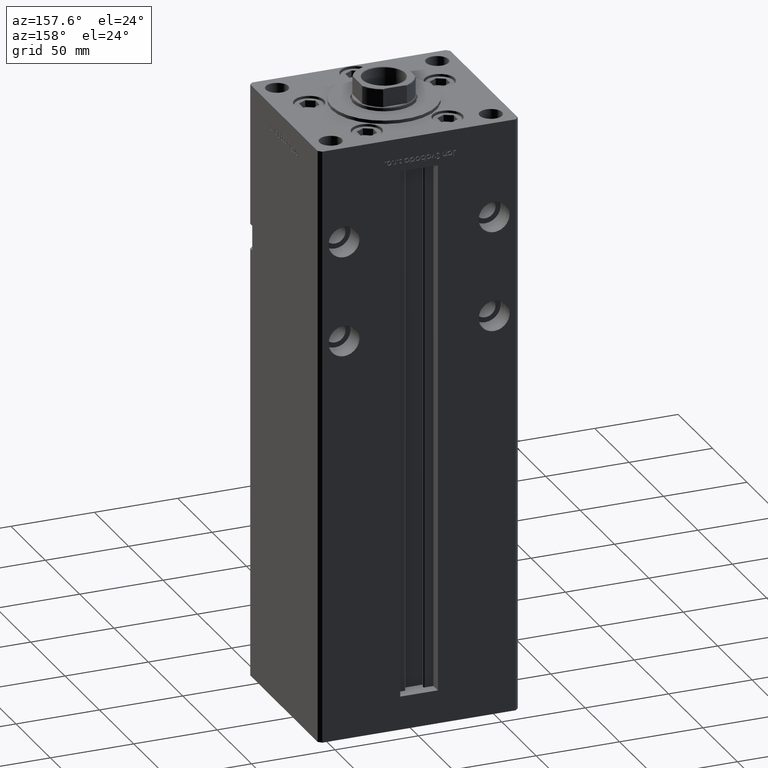
[diagram: clean part render]
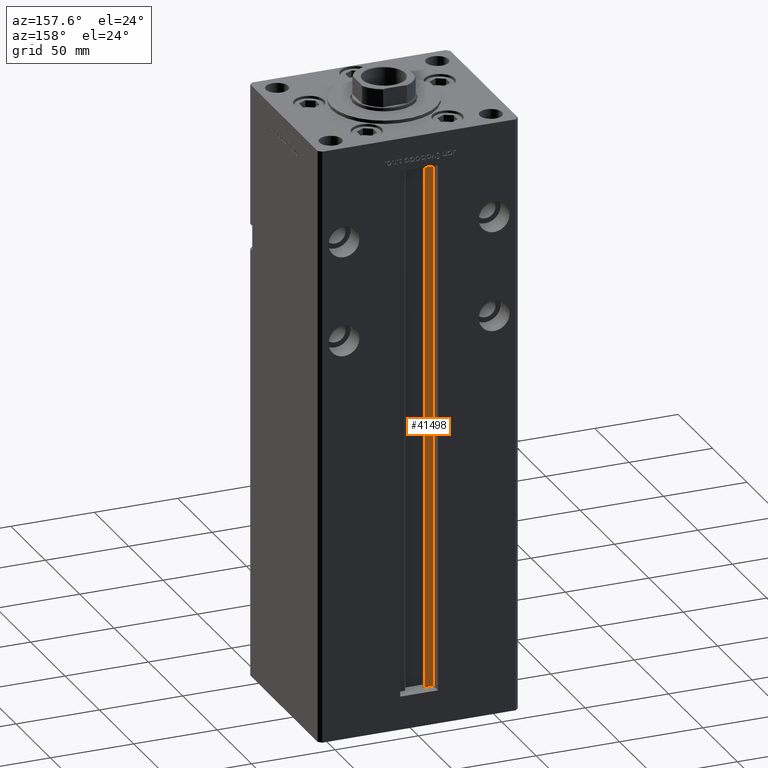
[diagram: same view with one face highlighted and labeled with its STEP entity id]
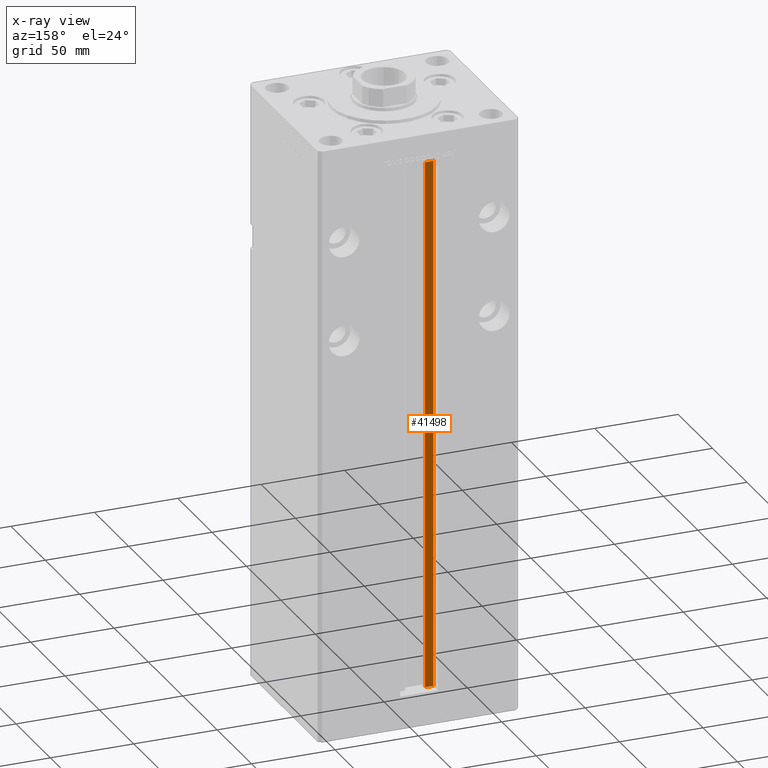
[diagram: x-ray of the same camera — body ghosted, the highlighted face saturated]
A machine part, auxiliary view. The second image highlights one B-rep face of the part: STEP entity #41498.
The next image is the same camera in x-ray: the body ghosted, the highlighted face saturated — about 0% of this face is hidden behind the body in this view.
In plain terms, the highlighted planar face has unit normal (0, -1, 0).
Its self-contained STEP definition (entity closure, byte-faithful):
#230 = LINE ( 'NONE', #48757, #33645 ) ;
#587 = DIRECTION ( 'NONE',  ( -1.000000000000000000, 0.000000000000000000, 0.000000000000000000 ) ) ;
#851 = CARTESIAN_POINT ( 'NONE',  ( -6.183333333333997928, 44.50000000000000711, 0.000000000000000000 ) ) ;
#4089 = LINE ( 'NONE', #48314, #36379 ) ;
#4267 = VERTEX_POINT ( 'NONE', #39614 ) ;
#4610 = VERTEX_POINT ( 'NONE', #39232 ) ;
#5944 = DIRECTION ( 'NONE',  ( 0.000000000000000000, 0.000000000000000000, -1.000000000000000000 ) ) ;
#6967 = ORIENTED_EDGE ( 'NONE', *, *, #17711, .F. ) ;
#7926 = VERTEX_POINT ( 'NONE', #39069 ) ;
#8057 = AXIS2_PLACEMENT_3D ( 'NONE', #51771, #34344, #5944 ) ;
#8214 = DIRECTION ( 'NONE',  ( -0.000000000000000000, -0.000000000000000000, 1.000000000000000000 ) ) ;
#10262 = EDGE_LOOP ( 'NONE', ( #34479, #49910, #35590, #6967 ) ) ;
#17711 = EDGE_CURVE ( 'NONE', #4610, #4267, #4089, .T. ) ;
#24023 = LINE ( 'NONE', #44139, #39910 ) ;
#29532 = LINE ( 'NONE', #851, #38421 ) ;
#32891 = EDGE_CURVE ( 'NONE', #52090, #7926, #29532, .T. ) ;
#33645 = VECTOR ( 'NONE', #41490, 1000.000000000000000 ) ;
#34344 = DIRECTION ( 'NONE',  ( 0.000000000000000000, -1.000000000000000000, -0.000000000000000000 ) ) ;
#34479 = ORIENTED_EDGE ( 'NONE', *, *, #48041, .F. ) ;
#35134 = FACE_OUTER_BOUND ( 'NONE', #10262, .T. ) ;
#35590 = ORIENTED_EDGE ( 'NONE', *, *, #38994, .T. ) ;
#36379 = VECTOR ( 'NONE', #587, 1000.000000000000000 ) ;
#37898 = CARTESIAN_POINT ( 'NONE',  ( -11.24999999999999822, 44.50000000000000711, 0.000000000000000000 ) ) ;
#38421 = VECTOR ( 'NONE', #49905, 1000.000000000000000 ) ;
#38994 = EDGE_CURVE ( 'NONE', #52090, #4267, #230, .T. ) ;
#39069 = CARTESIAN_POINT ( 'NONE',  ( -6.183333333333997928, 44.50000000000000711, 0.000000000000000000 ) ) ;
#39232 = CARTESIAN_POINT ( 'NONE',  ( -6.183333333333997928, 44.50000000000000711, 318.5000000000000000 ) ) ;
#39614 = CARTESIAN_POINT ( 'NONE',  ( -11.24999999999999822, 44.50000000000000711, 318.5000000000000000 ) ) ;
#39910 = VECTOR ( 'NONE', #8214, 1000.000000000000000 ) ;
#41490 = DIRECTION ( 'NONE',  ( -0.000000000000000000, -0.000000000000000000, 1.000000000000000000 ) ) ;
#41498 = ADVANCED_FACE ( 'NONE', ( #35134 ), #42913, .F. ) ;
#42913 = PLANE ( 'NONE',  #8057 ) ;
#44139 = CARTESIAN_POINT ( 'NONE',  ( -6.183333333333997928, 44.50000000000000711, 0.000000000000000000 ) ) ;
#48041 = EDGE_CURVE ( 'NONE', #7926, #4610, #24023, .T. ) ;
#48314 = CARTESIAN_POINT ( 'NONE',  ( 0.000000000000000000, 44.50000000000000711, 318.5000000000000000 ) ) ;
#48757 = CARTESIAN_POINT ( 'NONE',  ( -11.24999999999999822, 44.50000000000000711, 0.000000000000000000 ) ) ;
#49905 = DIRECTION ( 'NONE',  ( 1.000000000000000000, -0.000000000000000000, -0.000000000000000000 ) ) ;
#49910 = ORIENTED_EDGE ( 'NONE', *, *, #32891, .F. ) ;
#51771 = CARTESIAN_POINT ( 'NONE',  ( -6.183333333333997928, 44.50000000000000711, 0.000000000000000000 ) ) ;
#52090 = VERTEX_POINT ( 'NONE', #37898 ) ;